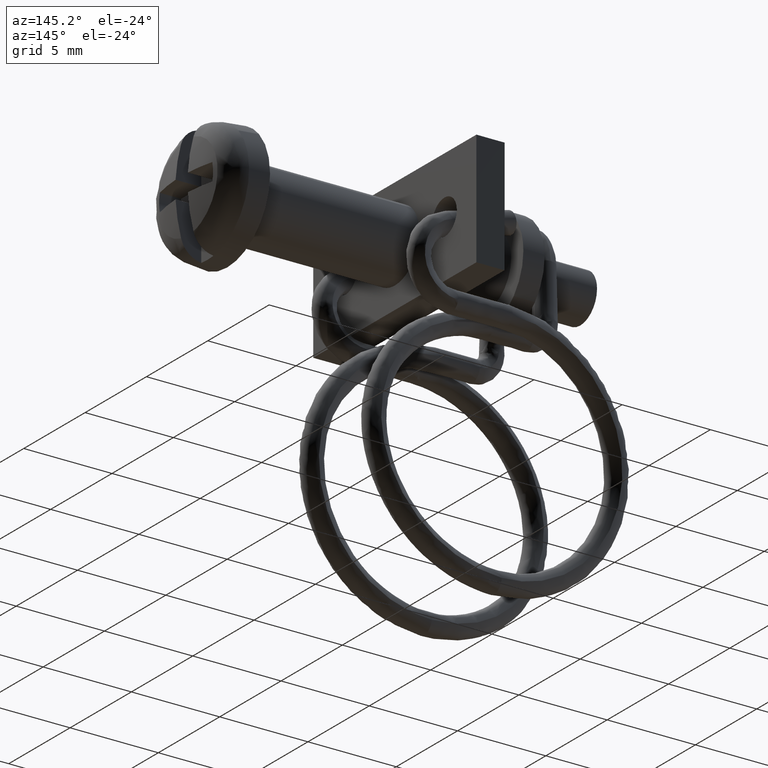
[diagram: clean part render]
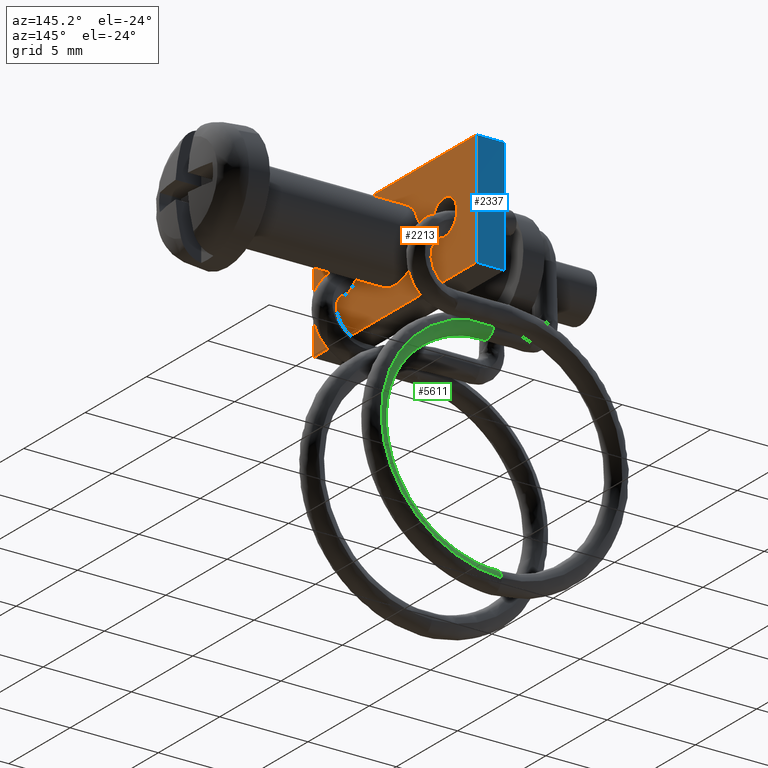
[diagram: same view with three faces highlighted in distinct colors, each labeled with its STEP entity id]
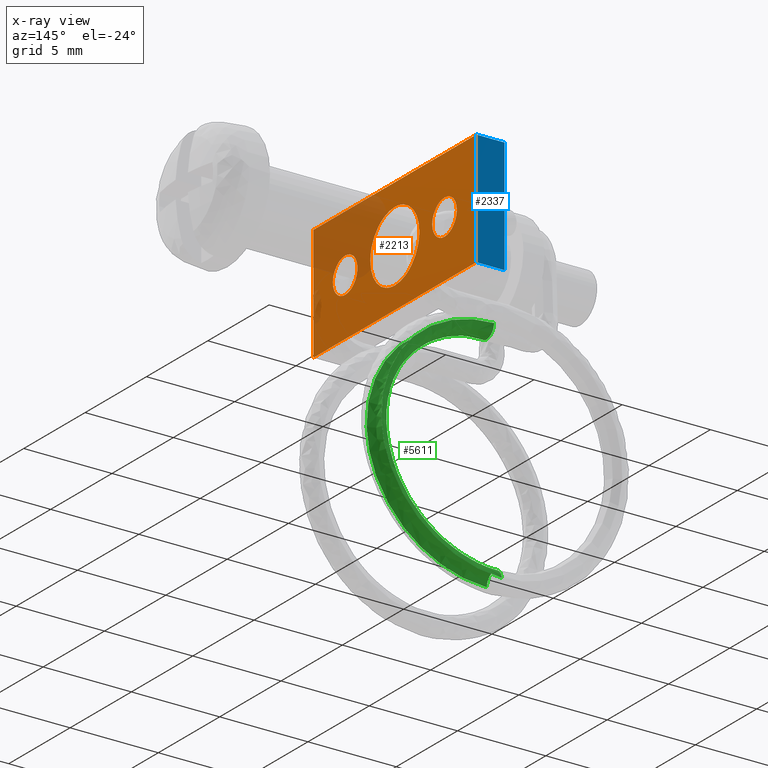
[diagram: x-ray of the same camera — body ghosted, the three highlighted faces saturated]
A machine part, auxiliary view with three faces highlighted in distinct colors.
The next image is the same camera in x-ray (body ghosted, the three faces saturated) — at least one of them is partly hidden behind the body in this view.
Their STEP definitions:

[orange] entity #2213 — the highlighted face is a freeform B-spline surface patch.
#1558=CARTESIAN_POINT('',(-9.500000000001013,-1.376709074266977,1.450748699295708));
#1559=VERTEX_POINT('',#1558);
#1560=CARTESIAN_POINT('',(-9.500000000000000,-1.999999999999972,-0.000000336783941));
#1561=VERTEX_POINT('',#1560);
#1562=CARTESIAN_POINT('',(-9.500000000001013,-1.376709074266977,1.450748699295708));
#1563=CARTESIAN_POINT('',(-9.500000000000943,-1.499392462714734,1.334395431810573));
#1564=CARTESIAN_POINT('',(-9.500000000000748,-1.687975837321238,1.103312920688563));
#1565=CARTESIAN_POINT('',(-9.500000000000526,-1.877575154653843,0.723379978676688));
#1566=CARTESIAN_POINT('',(-9.500000000000240,-1.978176975130994,0.363516855559823));
#1567=CARTESIAN_POINT('',(-9.500000000000075,-2.000010629226742,0.118355257256438));
#1568=CARTESIAN_POINT('',(-9.500000000000000,-1.999999999999972,-0.000000336783941));
#1569=B_SPLINE_CURVE_WITH_KNOTS('',3,(#1562,#1563,#1564,#1565,#1566,#1567,#1568),.UNSPECIFIED.,.F.,.U.,(4,1,1,1,4),(9.544013E-009,0.507239891594567,0.887665216070837,1.268100458223756,1.623167408407754),.UNSPECIFIED.);
#1570=EDGE_CURVE('',#1559,#1561,#1569,.T.);
#1572=CARTESIAN_POINT('',(-9.500000000000000,0.0,-2.000000000000199));
#1573=VERTEX_POINT('',#1572);
#1574=CARTESIAN_POINT('',(-9.500000000000000,-1.999999999999972,-0.000000336783941));
#1575=CARTESIAN_POINT('',(-9.500000000000002,-2.000122377351887,-0.212727367355783));
#1576=CARTESIAN_POINT('',(-9.499999999999996,-1.940686505506102,-0.580803602736940));
#1577=CARTESIAN_POINT('',(-9.500000000000020,-1.728635326195522,-1.036331010046611));
#1578=CARTESIAN_POINT('',(-9.499999999999966,-1.499633899786106,-1.337260354587177));
#1579=CARTESIAN_POINT('',(-9.500000000000023,-1.248754649479233,-1.573201526338301));
#1580=CARTESIAN_POINT('',(-9.499999999999998,-0.983436195732444,-1.752850986347630));
#1581=CARTESIAN_POINT('',(-9.499999999999965,-0.654195604512761,-1.901215530452847));
#1582=CARTESIAN_POINT('',(-9.500000000000110,-0.327250715124761,-1.983116104057300));
#1583=CARTESIAN_POINT('',(-9.499999999999861,-0.098173220102669,-2.000001010079179));
#1584=CARTESIAN_POINT('',(-9.500000000000000,0.0,-2.000000000000199));
#1585=B_SPLINE_CURVE_WITH_KNOTS('',3,(#1574,#1575,#1576,#1577,#1578,#1579,#1580,#1581,#1582,#1583,#1584),.UNSPECIFIED.,.F.,.U.,(4,1,1,1,1,1,1,1,4),(0.000000032458224,0.638139644845912,1.104475304421766,1.497183811055401,1.767155784760902,2.135313981160367,2.454386273502320,2.847088447003053,3.141612175933704),.UNSPECIFIED.);
#1586=EDGE_CURVE('',#1561,#1573,#1585,.T.);
#1588=CARTESIAN_POINT('',(-9.500000000001013,1.376709074266970,-1.450748699296099));
#1589=VERTEX_POINT('',#1588);
#1590=CARTESIAN_POINT('',(-9.500000000000000,0.0,-2.000000000000199));
#1591=CARTESIAN_POINT('',(-9.500000000000078,0.102810418467720,-2.000004336512524));
#1592=CARTESIAN_POINT('',(-9.500000000000236,0.324250317078886,-1.982896339372798));
#1593=CARTESIAN_POINT('',(-9.500000000000471,0.640202976912796,-1.904506852817401));
#1594=CARTESIAN_POINT('',(-9.500000000000744,1.011337098057659,-1.743533821503788));
#1595=CARTESIAN_POINT('',(-9.500000000000922,1.244807458875841,-1.576015773665277));
#1596=CARTESIAN_POINT('',(-9.500000000001013,1.376709074266970,-1.450748699296099));
#1597=B_SPLINE_CURVE_WITH_KNOTS('',3,(#1590,#1591,#1592,#1593,#1594,#1595,#1596),.UNSPECIFIED.,.F.,.U.,(4,1,1,1,4),(7.946572E-009,0.308433144725803,0.664321835104169,0.972751184920335,1.518445293771588),.UNSPECIFIED.);
#1598=EDGE_CURVE('',#1573,#1589,#1597,.T.);
#1671=CARTESIAN_POINT('',(-9.500000000000000,0.0,1.999999999999801));
#1672=VERTEX_POINT('',#1671);
#1673=CARTESIAN_POINT('',(-9.500000000000000,0.0,1.999999999999801));
#1674=CARTESIAN_POINT('',(-9.500000000000091,-0.142355272534694,2.000023214312075));
#1675=CARTESIAN_POINT('',(-9.500000000000357,-0.427052810746385,1.969476055367797));
#1676=CARTESIAN_POINT('',(-9.500000000000551,-0.804515533887421,1.844282463796651));
#1677=CARTESIAN_POINT('',(-9.500000000000849,-1.123081650538012,1.666016682180617));
#1678=CARTESIAN_POINT('',(-9.500000000000943,-1.296401161661675,1.526968708335822));
#1679=CARTESIAN_POINT('',(-9.500000000001013,-1.376709074266977,1.450748699295708));
#1680=B_SPLINE_CURVE_WITH_KNOTS('',3,(#1673,#1674,#1675,#1676,#1677,#1678,#1679),.UNSPECIFIED.,.F.,.U.,(4,1,1,1,4),(7.946628E-009,0.427062909442684,0.854123466611190,1.186285552355097,1.518445293771592),.UNSPECIFIED.);
#1681=EDGE_CURVE('',#1672,#1559,#1680,.T.);
#1722=CARTESIAN_POINT('',(-9.500000000000000,1.999999999999972,0.000000336783581));
#1723=VERTEX_POINT('',#1722);
#1724=CARTESIAN_POINT('',(-9.500000000001013,1.376709074266970,-1.450748699296099));
#1725=CARTESIAN_POINT('',(-9.500000000000966,1.468695640481478,-1.363464453707096));
#1726=CARTESIAN_POINT('',(-9.500000000000792,1.663918579988548,-1.139326478165478));
#1727=CARTESIAN_POINT('',(-9.500000000000515,1.866164134935382,-0.764285151770979));
#1728=CARTESIAN_POINT('',(-9.500000000000263,1.978176604691164,-0.363516972667552));
#1729=CARTESIAN_POINT('',(-9.500000000000098,2.000009798948269,-0.118354745070577));
#1730=CARTESIAN_POINT('',(-9.500000000000000,1.999999999999972,0.000000336783581));
#1731=B_SPLINE_CURVE_WITH_KNOTS('',3,(#1724,#1725,#1726,#1727,#1728,#1729,#1730),.UNSPECIFIED.,.F.,.U.,(4,1,1,1,4),(9.544113E-009,0.380429598113468,0.887665216070912,1.268100458223804,1.623167408407786),.UNSPECIFIED.);
#1732=EDGE_CURVE('',#1589,#1723,#1731,.T.);
#1734=CARTESIAN_POINT('',(-9.500000000000000,1.999999999999972,0.000000336783581));
#1735=CARTESIAN_POINT('',(-9.500000000000030,2.000128449687550,0.212731165795333));
#1736=CARTESIAN_POINT('',(-9.499999999999984,1.945953170987649,0.548075516522428));
#1737=CARTESIAN_POINT('',(-9.500000000000021,1.768625009763623,0.954769478948960));
#1738=CARTESIAN_POINT('',(-9.499999999999952,1.601459871539513,1.208288920122351));
#1739=CARTESIAN_POINT('',(-9.500000000000103,1.402036870293325,1.436630567958423));
#1740=CARTESIAN_POINT('',(-9.499999999999920,1.139385140425256,1.660428175987586));
#1741=CARTESIAN_POINT('',(-9.500000000000098,0.793252271514915,1.850942227589670));
#1742=CARTESIAN_POINT('',(-9.499999999999812,0.400869323993469,1.972576989311722));
#1743=CARTESIAN_POINT('',(-9.500000000000346,0.139080768957842,2.000022100786034));
#1744=CARTESIAN_POINT('',(-9.500000000000000,0.0,1.999999999999801));
#1745=B_SPLINE_CURVE_WITH_KNOTS('',3,(#1734,#1735,#1736,#1737,#1738,#1739,#1740,#1741,#1742,#1743,#1744),.UNSPECIFIED.,.F.,.U.,(4,1,1,1,1,1,1,1,4),(0.000000032457315,0.638139644845197,1.006298269538049,1.325377052543902,1.546271745031272,1.914412447194290,2.356209139533834,2.724373199422151,3.141612175933691),.UNSPECIFIED.);
#1746=EDGE_CURVE('',#1723,#1672,#1745,.T.);
#1769=CARTESIAN_POINT('',(-9.500000000001508,-4.738354466648021,0.725374309799078));
#1770=VERTEX_POINT('',#1769);
#1771=CARTESIAN_POINT('',(-9.500000000000000,-5.049999999999886,-0.000000478513849));
#1772=VERTEX_POINT('',#1771);
#1773=CARTESIAN_POINT('',(-9.500000000001508,-4.738354466648021,0.725374309799078));
#1774=CARTESIAN_POINT('',(-9.500000000001341,-4.818120126679785,0.649763923961580));
#1775=CARTESIAN_POINT('',(-9.500000000001039,-4.939392092991055,0.488992393419838));
#1776=CARTESIAN_POINT('',(-9.500000000000478,-5.032628636369743,0.232484052929179));
#1777=CARTESIAN_POINT('',(-9.500000000000149,-5.050008035355983,0.071857289531831));
#1778=CARTESIAN_POINT('',(-9.500000000000000,-5.049999999999886,-0.000000478513849));
#1779=B_SPLINE_CURVE_WITH_KNOTS('',3,(#1773,#1774,#1775,#1776,#1777,#1778),.UNSPECIFIED.,.F.,.U.,(4,1,1,4),(0.000000011929179,0.329708789289503,0.596006923234514,0.811584006613166),.UNSPECIFIED.);
#1780=EDGE_CURVE('',#1770,#1772,#1779,.T.);
#1782=CARTESIAN_POINT('',(-9.500000000000000,-4.050000000000000,-1.000000000000199));
#1783=VERTEX_POINT('',#1782);
#1784=CARTESIAN_POINT('',(-9.500000000000000,-5.049999999999886,-0.000000478513849));
#1785=CARTESIAN_POINT('',(-9.500000000000005,-5.050061327154706,-0.110456228694432));
#1786=CARTESIAN_POINT('',(-9.499999999999977,-5.021929848396090,-0.278124976981196));
#1787=CARTESIAN_POINT('',(-9.500000000000030,-4.928721465940886,-0.488317728210952));
#1788=CARTESIAN_POINT('',(-9.499999999999950,-4.834295606746552,-0.627780668936038));
#1789=CARTESIAN_POINT('',(-9.500000000000094,-4.704199801523146,-0.764438435748173));
#1790=CARTESIAN_POINT('',(-9.499999999999867,-4.539927621402841,-0.881652305684376));
#1791=CARTESIAN_POINT('',(-9.500000000000142,-4.311784375826829,-0.976153787893056));
#1792=CARTESIAN_POINT('',(-9.499999999999870,-4.144086210740238,-1.000032714566677));
#1793=CARTESIAN_POINT('',(-9.500000000000000,-4.050000000000000,-1.000000000000199));
#1794=B_SPLINE_CURVE_WITH_KNOTS('',3,(#1784,#1785,#1786,#1787,#1788,#1789,#1790,#1791,#1792,#1793),.UNSPECIFIED.,.F.,.U.,(4,1,1,1,1,1,1,4),(0.000000042544070,0.331341434894772,0.503150183640747,0.687234072183017,0.834486165751084,1.067655772283313,1.288553118971646,1.570805913178871),.UNSPECIFIED.);
#1795=EDGE_CURVE('',#1772,#1783,#1794,.T.);
#1797=CARTESIAN_POINT('',(-9.500000000001506,-3.361645533351978,-0.725374309799476));
#1798=VERTEX_POINT('',#1797);
#1799=CARTESIAN_POINT('',(-9.500000000000000,-4.050000000000000,-1.000000000000199));
#1800=CARTESIAN_POINT('',(-9.500000000000165,-3.978822218524906,-1.000011544262522));
#1801=CARTESIAN_POINT('',(-9.500000000000439,-3.844384991297198,-0.985581393913232));
#1802=CARTESIAN_POINT('',(-9.500000000000989,-3.602151244240251,-0.908434330735611));
#1803=CARTESIAN_POINT('',(-9.500000000001318,-3.447638213717948,-0.807116919777592));
#1804=CARTESIAN_POINT('',(-9.500000000001506,-3.361645533351978,-0.725374309799476));
#1805=B_SPLINE_CURVE_WITH_KNOTS('',3,(#1799,#1800,#1801,#1802,#1803,#1804),.UNSPECIFIED.,.F.,.U.,(4,1,1,4),(5.035059E-009,0.213535123130843,0.403343983892065,0.759235945269405),.UNSPECIFIED.);
#1806=EDGE_CURVE('',#1783,#1798,#1805,.T.);
#1877=CARTESIAN_POINT('',(-9.500000000000000,-4.050000000000000,0.999999999999801));
#1878=VERTEX_POINT('',#1877);
#1879=CARTESIAN_POINT('',(-9.500000000000000,-4.050000000000000,0.999999999999801));
#1880=CARTESIAN_POINT('',(-9.500000000000240,-4.152816025496784,1.000050258330452));
#1881=CARTESIAN_POINT('',(-9.500000000000616,-4.334683112034695,0.971695640381980));
#1882=CARTESIAN_POINT('',(-9.500000000001135,-4.566645822448246,0.866122163732073));
#1883=CARTESIAN_POINT('',(-9.500000000001400,-4.686730611351595,0.774375659591890));
#1884=CARTESIAN_POINT('',(-9.500000000001508,-4.738354466648021,0.725374309799078));
#1885=B_SPLINE_CURVE_WITH_KNOTS('',3,(#1879,#1880,#1881,#1882,#1883,#1884),.UNSPECIFIED.,.F.,.U.,(4,1,1,4),(5.035031E-009,0.308439757639053,0.545700827175480,0.759235945269404),.UNSPECIFIED.);
#1886=EDGE_CURVE('',#1878,#1770,#1885,.T.);
#1925=CARTESIAN_POINT('',(-9.500000000000000,-3.050000000000114,0.000000478513449));
#1926=VERTEX_POINT('',#1925);
#1927=CARTESIAN_POINT('',(-9.500000000001506,-3.361645533351978,-0.725374309799476));
#1928=CARTESIAN_POINT('',(-9.500000000001423,-3.315652560954686,-0.681732125997721));
#1929=CARTESIAN_POINT('',(-9.500000000001167,-3.215252787002979,-0.566461172379601));
#1930=CARTESIAN_POINT('',(-9.500000000000672,-3.087211059779770,-0.325430191940448));
#1931=CARTESIAN_POINT('',(-9.500000000000272,-3.049911479844544,-0.118364963243635));
#1932=CARTESIAN_POINT('',(-9.500000000000000,-3.050000000000114,0.000000478513449));
#1933=B_SPLINE_CURVE_WITH_KNOTS('',3,(#1927,#1928,#1929,#1930,#1931,#1932),.UNSPECIFIED.,.F.,.U.,(4,1,1,4),(0.000000011929370,0.190214925892573,0.456513576323227,0.811584006613162),.UNSPECIFIED.);
#1934=EDGE_CURVE('',#1798,#1926,#1933,.T.);
#1936=CARTESIAN_POINT('',(-9.500000000000000,-3.050000000000114,0.000000478513449));
#1937=CARTESIAN_POINT('',(-9.500000000000041,-3.049868756491202,0.126831895155536));
#1938=CARTESIAN_POINT('',(-9.499999999999895,-3.089457355841268,0.331261421043505));
#1939=CARTESIAN_POINT('',(-9.500000000000187,-3.217121613316501,0.566565506695508));
#1940=CARTESIAN_POINT('',(-9.499999999999735,-3.342339706750534,0.713525007456227));
#1941=CARTESIAN_POINT('',(-9.500000000000188,-3.484360352552299,0.831553271921452));
#1942=CARTESIAN_POINT('',(-9.499999999999920,-3.628000513461828,0.911764816917730));
#1943=CARTESIAN_POINT('',(-9.500000000000037,-3.820944870608208,0.980802860867531));
#1944=CARTESIAN_POINT('',(-9.499999999999989,-3.955910735867247,1.000036219263532));
#1945=CARTESIAN_POINT('',(-9.500000000000000,-4.050000000000000,0.999999999999801));
#1946=B_SPLINE_CURVE_WITH_KNOTS('',3,(#1936,#1937,#1938,#1939,#1940,#1941,#1942,#1943,#1944,#1945),.UNSPECIFIED.,.F.,.U.,(4,1,1,1,1,1,1,4),(0.000000042542486,0.380429555759637,0.613602699324276,0.797661904256641,0.957203256085496,1.165832491102426,1.288553118971473,1.570805913178876),.UNSPECIFIED.);
#1947=EDGE_CURVE('',#1926,#1878,#1946,.T.);
#1970=CARTESIAN_POINT('',(-9.500000000001506,3.361645533352073,0.725374309799078));
#1971=VERTEX_POINT('',#1970);
#1972=CARTESIAN_POINT('',(-9.500000000000000,3.050000000000209,-0.000000478513848));
#1973=VERTEX_POINT('',#1972);
#1974=CARTESIAN_POINT('',(-9.500000000001506,3.361645533352073,0.725374309799078));
#1975=CARTESIAN_POINT('',(-9.500000000001299,3.266469165630998,0.635265490540559));
#1976=CARTESIAN_POINT('',(-9.500000000001011,3.149835676041510,0.469730618001709));
#1977=CARTESIAN_POINT('',(-9.500000000000394,3.065104597060707,0.211339540859443));
#1978=CARTESIAN_POINT('',(-9.500000000000165,3.049987340582462,0.071859124306956));
#1979=CARTESIAN_POINT('',(-9.500000000000000,3.050000000000209,-0.000000478513848));
#1980=B_SPLINE_CURVE_WITH_KNOTS('',3,(#1974,#1975,#1976,#1977,#1978,#1979),.UNSPECIFIED.,.F.,.U.,(4,1,1,4),(0.000000011929297,0.393117717863804,0.596006923234517,0.811584006613163),.UNSPECIFIED.);
#1981=EDGE_CURVE('',#1971,#1973,#1980,.T.);
#1983=CARTESIAN_POINT('',(-9.500000000000000,4.050000000000095,-1.000000000000199));
#1984=VERTEX_POINT('',#1983);
#1985=CARTESIAN_POINT('',(-9.500000000000000,3.050000000000209,-0.000000478513848));
#1986=CARTESIAN_POINT('',(-9.500000000000000,3.049920710428122,-0.118639610022930));
#1987=CARTESIAN_POINT('',(-9.500000000000027,3.083874038216325,-0.306748120605913));
#1988=CARTESIAN_POINT('',(-9.499999999999982,3.186222880122469,-0.513095933401916));
#1989=CARTESIAN_POINT('',(-9.500000000000055,3.289448849878903,-0.655922755722854));
#1990=CARTESIAN_POINT('',(-9.499999999999909,3.402797891202192,-0.769272268244151));
#1991=CARTESIAN_POINT('',(-9.500000000000057,3.554427269328829,-0.874668861230385));
#1992=CARTESIAN_POINT('',(-9.499999999999957,3.763692960982105,-0.970559897921615));
#1993=CARTESIAN_POINT('',(-9.500000000000021,3.939545047911705,-1.000061857774999));
#1994=CARTESIAN_POINT('',(-9.500000000000000,4.050000000000095,-1.000000000000199));
#1995=B_SPLINE_CURVE_WITH_KNOTS('',3,(#1985,#1986,#1987,#1988,#1989,#1990,#1991,#1992,#1993,#1994),.UNSPECIFIED.,.F.,.U.,(4,1,1,1,1,1,1,4),(0.000000042541614,0.355885555167989,0.564514070374818,0.687234072181813,0.883571883008778,1.043111291898295,1.239464520928133,1.570805913178879),.UNSPECIFIED.);
#1996=EDGE_CURVE('',#1973,#1984,#1995,.T.);
#1998=CARTESIAN_POINT('',(-9.500000000001506,4.738354466648117,-0.725374309799476));
#1999=VERTEX_POINT('',#1998);
#2000=CARTESIAN_POINT('',(-9.500000000000000,4.050000000000095,-1.000000000000199));
#2001=CARTESIAN_POINT('',(-9.500000000000288,4.168644812831690,-1.000099901077826));
#2002=CARTESIAN_POINT('',(-9.500000000000606,4.350467103745647,-0.967234194574602));
#2003=CARTESIAN_POINT('',(-9.500000000001212,4.579281152718973,-0.856451307495445));
#2004=CARTESIAN_POINT('',(-9.500000000001355,4.686731962721698,-0.774378588257535));
#2005=CARTESIAN_POINT('',(-9.500000000001506,4.738354466648117,-0.725374309799476));
#2006=B_SPLINE_CURVE_WITH_KNOTS('',3,(#2000,#2001,#2002,#2003,#2004,#2005),.UNSPECIFIED.,.F.,.U.,(4,1,1,4),(5.034943E-009,0.355891966427261,0.545700827175485,0.759235945269405),.UNSPECIFIED.);
#2007=EDGE_CURVE('',#1984,#1999,#2006,.T.);
#2079=CARTESIAN_POINT('',(-9.500000000000000,4.050000000000095,0.999999999999801));
#2080=VERTEX_POINT('',#2079);
#2081=CARTESIAN_POINT('',(-9.500000000000000,4.050000000000095,0.999999999999801));
#2082=CARTESIAN_POINT('',(-9.500000000000270,3.931353427898584,1.000101447502217));
#2083=CARTESIAN_POINT('',(-9.500000000000599,3.765348283288544,0.970088447128535));
#2084=CARTESIAN_POINT('',(-9.500000000001164,3.534419013063662,0.864979887907152));
#2085=CARTESIAN_POINT('',(-9.500000000001339,3.424733420936521,0.785278064443374));
#2086=CARTESIAN_POINT('',(-9.500000000001506,3.361645533352073,0.725374309799078));
#2087=B_SPLINE_CURVE_WITH_KNOTS('',3,(#2081,#2082,#2083,#2084,#2085,#2086),.UNSPECIFIED.,.F.,.U.,(4,1,1,4),(5.035111E-009,0.355891966427325,0.498248513362577,0.759235945269404),.UNSPECIFIED.);
#2088=EDGE_CURVE('',#2080,#1971,#2087,.T.);
#2127=CARTESIAN_POINT('',(-9.500000000000000,5.049999999999980,0.000000478513450));
#2128=VERTEX_POINT('',#2127);
#2129=CARTESIAN_POINT('',(-9.500000000001506,4.738354466648117,-0.725374309799476));
#2130=CARTESIAN_POINT('',(-9.500000000001339,4.830442610617331,-0.638161897296462));
#2131=CARTESIAN_POINT('',(-9.500000000000952,4.948013850219654,-0.473588309038556));
#2132=CARTESIAN_POINT('',(-9.500000000000501,5.034439453676663,-0.215568131216203));
#2133=CARTESIAN_POINT('',(-9.500000000000128,5.050012305821571,-0.071859048551546));
#2134=CARTESIAN_POINT('',(-9.500000000000000,5.049999999999980,0.000000478513450));
#2135=B_SPLINE_CURVE_WITH_KNOTS('',3,(#2129,#2130,#2131,#2132,#2133,#2134),.UNSPECIFIED.,.F.,.U.,(4,1,1,4),(0.000000011929353,0.380431558030504,0.596006923234520,0.811584006613163),.UNSPECIFIED.);
#2136=EDGE_CURVE('',#1999,#2128,#2135,.T.);
#2138=CARTESIAN_POINT('',(-9.500000000000000,5.049999999999980,0.000000478513450));
#2139=CARTESIAN_POINT('',(-9.499999999999981,5.050013878510578,0.073630866543510));
#2140=CARTESIAN_POINT('',(-9.500000000000037,5.034115208347408,0.216796556624538));
#2141=CARTESIAN_POINT('',(-9.499999999999995,4.968417319443590,0.411667760047006));
#2142=CARTESIAN_POINT('',(-9.499999999999998,4.876303306738402,0.571950028019904));
#2143=CARTESIAN_POINT('',(-9.500000000000011,4.753040751026234,0.720293949155813));
#2144=CARTESIAN_POINT('',(-9.499999999999961,4.596264924472515,0.847355795104612));
#2145=CARTESIAN_POINT('',(-9.500000000000050,4.356737872230558,0.966097792062572));
#2146=CARTESIAN_POINT('',(-9.499999999999963,4.168644514494556,1.000100901008067));
#2147=CARTESIAN_POINT('',(-9.500000000000000,4.050000000000095,0.999999999999801));
#2148=B_SPLINE_CURVE_WITH_KNOTS('',3,(#2138,#2139,#2140,#2141,#2142,#2143,#2144,#2145,#2146,#2147),.UNSPECIFIED.,.F.,.U.,(4,1,1,1,1,1,1,4),(0.000000042542586,0.220888950011523,0.429517465279384,0.613602699324263,0.773144051440316,1.006291885125608,1.214920400626957,1.570805913178879),.UNSPECIFIED.);
#2149=EDGE_CURVE('',#2128,#2080,#2148,.T.);
#2154=CARTESIAN_POINT('',(-9.500000000000000,-7.314334974222019,3.574674987401539));
#2155=CARTESIAN_POINT('',(-9.500000000000000,7.314335330955819,3.574674987401539));
#2156=CARTESIAN_POINT('',(-9.500000000000000,-7.314334974222019,-3.574675161745525));
#2157=CARTESIAN_POINT('',(-9.500000000000000,7.314335330955819,-3.574675161745525));
#2158=B_SPLINE_SURFACE_WITH_KNOTS('',1,1,((#2154,#2156),(#2155,#2157)),.UNSPECIFIED.,.F.,.F.,.U.,(2,2),(2,2),(0.0,14.628670305177840),(0.0,7.149350149147064),.UNSPECIFIED.);
#2159=CARTESIAN_POINT('',(-9.500000000000000,6.650000000000000,-3.250000000000200));
#2160=VERTEX_POINT('',#2159);
#2161=CARTESIAN_POINT('',(-9.500000000000000,6.650000000000000,3.249999999999800));
#2162=VERTEX_POINT('',#2161);
#2163=CARTESIAN_POINT('',(-9.500000000000000,6.650000000000000,-3.250000000000200));
#2164=CARTESIAN_POINT('',(-9.500000000000000,6.650000000000000,3.249999999999800));
#2165=QUASI_UNIFORM_CURVE('',1,(#2163,#2164),.UNSPECIFIED.,.F.,.U.);
#2166=EDGE_CURVE('',#2160,#2162,#2165,.T.);
#2167=ORIENTED_EDGE('',*,*,#2166,.T.);
#2168=CARTESIAN_POINT('',(-9.500000000000000,-6.650000000000000,3.249999999999800));
#2169=VERTEX_POINT('',#2168);
#2170=CARTESIAN_POINT('',(-9.500000000000000,6.650000000000000,3.249999999999800));
#2171=CARTESIAN_POINT('',(-9.500000000000000,-6.650000000000000,3.249999999999800));
#2172=QUASI_UNIFORM_CURVE('',1,(#2170,#2171),.UNSPECIFIED.,.F.,.U.);
#2173=EDGE_CURVE('',#2162,#2169,#2172,.T.);
#2174=ORIENTED_EDGE('',*,*,#2173,.T.);
#2175=CARTESIAN_POINT('',(-9.500000000000000,-6.650000000000000,-3.250000000000200));
#2176=VERTEX_POINT('',#2175);
#2177=CARTESIAN_POINT('',(-9.500000000000000,-6.650000000000000,3.249999999999800));
#2178=CARTESIAN_POINT('',(-9.500000000000000,-6.650000000000000,-3.250000000000200));
#2179=QUASI_UNIFORM_CURVE('',1,(#2177,#2178),.UNSPECIFIED.,.F.,.U.);
#2180=EDGE_CURVE('',#2169,#2176,#2179,.T.);
#2181=ORIENTED_EDGE('',*,*,#2180,.T.);
#2182=CARTESIAN_POINT('',(-9.500000000000000,-6.650000000000000,-3.250000000000200));
#2183=CARTESIAN_POINT('',(-9.500000000000000,6.650000000000000,-3.250000000000200));
#2184=QUASI_UNIFORM_CURVE('',1,(#2182,#2183),.UNSPECIFIED.,.F.,.U.);
#2185=EDGE_CURVE('',#2176,#2160,#2184,.T.);
#2186=ORIENTED_EDGE('',*,*,#2185,.T.);
#2187=EDGE_LOOP('',(#2167,#2174,#2181,#2186));
#2188=FACE_OUTER_BOUND('',#2187,.T.);
#2189=ORIENTED_EDGE('',*,*,#1996,.F.);
#2190=ORIENTED_EDGE('',*,*,#1981,.F.);
#2191=ORIENTED_EDGE('',*,*,#2088,.F.);
#2192=ORIENTED_EDGE('',*,*,#2149,.F.);
#2193=ORIENTED_EDGE('',*,*,#2136,.F.);
#2194=ORIENTED_EDGE('',*,*,#2007,.F.);
#2195=EDGE_LOOP('',(#2189,#2190,#2191,#2192,#2193,#2194));
#2196=FACE_BOUND('',#2195,.T.);
#2197=ORIENTED_EDGE('',*,*,#1795,.F.);
#2198=ORIENTED_EDGE('',*,*,#1780,.F.);
#2199=ORIENTED_EDGE('',*,*,#1886,.F.);
#2200=ORIENTED_EDGE('',*,*,#1947,.F.);
#2201=ORIENTED_EDGE('',*,*,#1934,.F.);
#2202=ORIENTED_EDGE('',*,*,#1806,.F.);
#2203=EDGE_LOOP('',(#2197,#2198,#2199,#2200,#2201,#2202));
#2204=FACE_BOUND('',#2203,.T.);
#2205=ORIENTED_EDGE('',*,*,#1586,.F.);
#2206=ORIENTED_EDGE('',*,*,#1570,.F.);
#2207=ORIENTED_EDGE('',*,*,#1681,.F.);
#2208=ORIENTED_EDGE('',*,*,#1746,.F.);
#2209=ORIENTED_EDGE('',*,*,#1732,.F.);
#2210=ORIENTED_EDGE('',*,*,#1598,.F.);
#2211=EDGE_LOOP('',(#2205,#2206,#2207,#2208,#2209,#2210));
#2212=FACE_BOUND('',#2211,.T.);
#2213=ADVANCED_FACE('',(#2188,#2196,#2204,#2212),#2158,.F.);

[blue] entity #2337 — the highlighted face is a freeform B-spline surface patch.
#2159=CARTESIAN_POINT('',(-9.500000000000000,6.650000000000000,-3.250000000000200));
#2160=VERTEX_POINT('',#2159);
#2161=CARTESIAN_POINT('',(-9.500000000000000,6.650000000000000,3.249999999999800));
#2162=VERTEX_POINT('',#2161);
#2163=CARTESIAN_POINT('',(-9.500000000000000,6.650000000000000,-3.250000000000200));
#2164=CARTESIAN_POINT('',(-9.500000000000000,6.650000000000000,3.249999999999800));
#2165=QUASI_UNIFORM_CURVE('',1,(#2163,#2164),.UNSPECIFIED.,.F.,.U.);
#2166=EDGE_CURVE('',#2160,#2162,#2165,.T.);
#2219=CARTESIAN_POINT('',(-11.100000000000000,6.650000000000000,-3.250000000000200));
#2220=VERTEX_POINT('',#2219);
#2221=CARTESIAN_POINT('',(-11.100000000000000,6.650000000000000,3.249999999999800));
#2222=VERTEX_POINT('',#2221);
#2223=CARTESIAN_POINT('',(-11.100000000000000,6.650000000000000,-3.250000000000200));
#2224=CARTESIAN_POINT('',(-11.100000000000000,6.650000000000000,3.249999999999800));
#2225=QUASI_UNIFORM_CURVE('',1,(#2223,#2224),.UNSPECIFIED.,.F.,.U.);
#2226=EDGE_CURVE('',#2220,#2222,#2225,.T.);
#2286=CARTESIAN_POINT('',(-11.100000000000000,6.650000000000000,-3.250000000000200));
#2287=CARTESIAN_POINT('',(-9.500000000000000,6.650000000000000,-3.250000000000200));
#2288=QUASI_UNIFORM_CURVE('',1,(#2286,#2287),.UNSPECIFIED.,.F.,.U.);
#2289=EDGE_CURVE('',#2220,#2160,#2288,.T.);
#2316=CARTESIAN_POINT('',(-11.100000000000000,6.650000000000000,3.249999999999800));
#2317=CARTESIAN_POINT('',(-9.500000000000000,6.650000000000000,3.249999999999800));
#2318=QUASI_UNIFORM_CURVE('',1,(#2316,#2317),.UNSPECIFIED.,.F.,.U.);
#2319=EDGE_CURVE('',#2222,#2162,#2318,.T.);
#2326=CARTESIAN_POINT('',(-11.179919996898890,6.650000000000000,-3.574674987401939));
#2327=CARTESIAN_POINT('',(-11.179919996898890,6.650000000000000,3.574675161745125));
#2328=CARTESIAN_POINT('',(-9.420079960185767,6.650000000000000,-3.574674987401939));
#2329=CARTESIAN_POINT('',(-9.420079960185767,6.650000000000000,3.574675161745125));
#2330=B_SPLINE_SURFACE_WITH_KNOTS('',1,1,((#2326,#2328),(#2327,#2329)),.UNSPECIFIED.,.F.,.F.,.U.,(2,2),(2,2),(0.0,7.149350149147065),(0.041708334948495,0.958291687403247),.UNSPECIFIED.);
#2331=ORIENTED_EDGE('',*,*,#2166,.F.);
#2332=ORIENTED_EDGE('',*,*,#2289,.F.);
#2333=ORIENTED_EDGE('',*,*,#2226,.T.);
#2334=ORIENTED_EDGE('',*,*,#2319,.T.);
#2335=EDGE_LOOP('',(#2331,#2332,#2333,#2334));
#2336=FACE_OUTER_BOUND('',#2335,.T.);
#2337=ADVANCED_FACE('',(#2336),#2330,.T.);

[green] entity #5611 — the highlighted face is a freeform B-spline surface patch.
#5372=CARTESIAN_POINT('',(-13.150000000000000,2.831227853964407,-4.017934598870270));
#5373=VERTEX_POINT('',#5372);
#5381=CARTESIAN_POINT('',(-13.150000000000000,2.202389200221234,-4.645069067372981));
#5382=VERTEX_POINT('',#5381);
#5383=CARTESIAN_POINT('',(-13.150000000000000,2.202389200221234,-4.645069067372981));
#5384=CARTESIAN_POINT('',(-13.150000000000000,2.221474330848853,-4.646268491444610));
#5385=CARTESIAN_POINT('',(-13.150000000000000,2.240677908252435,-4.646443962787320));
#5386=CARTESIAN_POINT('',(-13.150000000000000,2.573756457505255,-4.630790123080701));
#5387=CARTESIAN_POINT('',(-13.150000000000000,2.845919794157308,-4.331798711975601));
#5388=CARTESIAN_POINT('',(-13.150000000000000,2.831227853964407,-4.017934598870270));
#5389=B_SPLINE_CURVE_WITH_KNOTS('',3,(#5383,#5384,#5385,#5386,#5387,#5388),.UNSPECIFIED.,.F.,.U.,(4,2,4),(0.734656928659896,0.750000000000000,1.0),.UNSPECIFIED.);
#5390=EDGE_CURVE('',#5382,#5373,#5389,.T.);
#5461=CARTESIAN_POINT('',(-13.150000000000000,1.632541350710907,-4.074065400734281));
#5462=VERTEX_POINT('',#5461);
#5463=CARTESIAN_POINT('',(-13.150000000000000,1.632541350710907,-4.074065400734281));
#5464=CARTESIAN_POINT('',(-13.150000000000000,1.646331002217988,-4.368676650248808));
#5465=CARTESIAN_POINT('',(-13.150000000000000,1.910507542169417,-4.626624690239388));
#5466=CARTESIAN_POINT('',(-13.150000000000000,2.202389200221234,-4.645069067372981));
#5467=B_SPLINE_CURVE_WITH_KNOTS('',3,(#5463,#5464,#5465,#5466),.UNSPECIFIED.,.F.,.U.,(4,4),(0.500000000000000,0.734656928659896),.UNSPECIFIED.);
#5468=EDGE_CURVE('',#5462,#5382,#5467,.T.);
#5483=CARTESIAN_POINT('',(-13.358405158386731,2.251538448981070,-17.292894324312432));
#5484=CARTESIAN_POINT('',(-13.348271025291661,2.225099026961980,-16.972319934256781));
#5485=CARTESIAN_POINT('',(-13.338895733722810,2.501842761093846,-16.661645652148451));
#5486=CARTESIAN_POINT('',(-13.338895733719500,3.142026434854931,-16.631667819765269));
#5487=CARTESIAN_POINT('',(-13.348271025291780,3.446591341368879,-16.915121206409779));
#5488=CARTESIAN_POINT('',(-13.358405158386731,3.450224952234571,-17.236763522448431));
#5489=CARTESIAN_POINT('',(-13.288936772257861,2.251538448981070,-17.292894324312432));
#5490=CARTESIAN_POINT('',(-13.282180683527811,2.225099026961980,-16.972319934256781));
#5491=CARTESIAN_POINT('',(-13.275930489148580,2.501842761093846,-16.661645652148451));
#5492=CARTESIAN_POINT('',(-13.275930489146370,3.142026434854931,-16.631667819765269));
#5493=CARTESIAN_POINT('',(-13.282180683527899,3.446591341368879,-16.915121206409779));
#5494=CARTESIAN_POINT('',(-13.288936772257861,3.450224952234571,-17.236763522448431));
#5495=CARTESIAN_POINT('',(-13.219468386128989,2.251538448981070,-17.292894324312432));
#5496=CARTESIAN_POINT('',(-13.216090341763961,2.225099026961980,-16.972319934256781));
#5497=CARTESIAN_POINT('',(-13.212965244574351,2.501842761093846,-16.661645652148451));
#5498=CARTESIAN_POINT('',(-13.212965244573249,3.142026434854931,-16.631667819765269));
#5499=CARTESIAN_POINT('',(-13.216090341764010,3.446591341368879,-16.915121206409779));
#5500=CARTESIAN_POINT('',(-13.219468386128989,3.450224952234571,-17.236763522448431));
#5501=CARTESIAN_POINT('',(-11.413290346778130,2.251538448981070,-17.292894324312432));
#5502=CARTESIAN_POINT('',(-11.497741455903750,2.225099026961980,-16.972319934256781));
#5503=CARTESIAN_POINT('',(-11.575868885644150,2.501842761093846,-16.661645652148451));
#5504=CARTESIAN_POINT('',(-11.575868885671740,3.142026434854931,-16.631667819765269));
#5505=CARTESIAN_POINT('',(-11.497741455902680,3.446591341368879,-16.915121206409779));
#5506=CARTESIAN_POINT('',(-11.413290346778130,3.450224952234571,-17.236763522448431));
#5507=CARTESIAN_POINT('',(-9.695845105518545,2.218153965588797,-16.579960813792411));
#5508=CARTESIAN_POINT('',(-9.863760987330203,2.193338458343313,-16.294065506467931));
#5509=CARTESIAN_POINT('',(-10.019103367014820,2.471584508888822,-16.015473545451869));
#5510=CARTESIAN_POINT('',(-10.019103367069681,3.111768182650820,-15.985495713080031));
#5511=CARTESIAN_POINT('',(-9.863760987328073,3.414830772750176,-16.236866778620492));
#5512=CARTESIAN_POINT('',(-9.695845105518544,3.416840468842496,-16.523830011928400));
#5513=CARTESIAN_POINT('',(-7.245208549062599,2.103435822891286,-14.130127838605750));
#5514=CARTESIAN_POINT('',(-7.532080426727423,2.084188832474840,-13.963149520605070));
#5515=CARTESIAN_POINT('',(-7.797471404996773,2.367586430605729,-13.794570072444090));
#5516=CARTESIAN_POINT('',(-7.797471405090507,3.007770104368782,-13.764592240111110));
#5517=CARTESIAN_POINT('',(-7.532080426723782,3.305681146881664,-13.905950792756110));
#5518=CARTESIAN_POINT('',(-7.245208549062599,3.302122326144589,-14.073997036741741));
#5519=CARTESIAN_POINT('',(-6.531516012796245,2.022806805804313,-12.408276175293681));
#5520=CARTESIAN_POINT('',(-6.852958513985684,2.007468456765813,-12.324767815145600));
#5521=CARTESIAN_POINT('',(-7.150331475547012,2.294482018118544,-12.233408113831450));
#5522=CARTESIAN_POINT('',(-7.150331475652044,2.934665691883255,-12.203430281525730));
#5523=CARTESIAN_POINT('',(-6.852958513981605,3.228960771172769,-12.267569087295589));
#5524=CARTESIAN_POINT('',(-6.531516012796245,3.221493309057902,-12.352145373430471));
#5525=CARTESIAN_POINT('',(-6.530785169695117,1.860522014913935,-8.942646216987829));
#5526=CARTESIAN_POINT('',(-6.852263088586343,1.853048217887712,-9.027087218656492));
#5527=CARTESIAN_POINT('',(-7.149668815767849,2.147337435429590,-9.091100870056451));
#5528=CARTESIAN_POINT('',(-7.149668815872893,2.787521109196872,-9.061123037805611));
#5529=CARTESIAN_POINT('',(-6.852263088582263,3.074540532294178,-8.969888490804337));
#5530=CARTESIAN_POINT('',(-6.530785169695116,3.059208518167349,-8.886515415123020));
#5531=CARTESIAN_POINT('',(-7.243786663299330,1.779865156784388,-7.220200001631994));
#5532=CARTESIAN_POINT('',(-7.530727498842384,1.776301345069535,-7.388139661168109));
#5533=CARTESIAN_POINT('',(-7.796182271439323,2.074207769133414,-7.529399610380812));
#5534=CARTESIAN_POINT('',(-7.796182271533081,2.714391442901968,-7.499421778158800));
#5535=CARTESIAN_POINT('',(-7.530727498838743,2.997793659476337,-7.330940933314832));
#5536=CARTESIAN_POINT('',(-7.243786663299330,2.978551660038073,-7.164069199767984));
#5537=CARTESIAN_POINT('',(-9.694306031043995,1.665079903998267,-4.768933874721351));
#5538=CARTESIAN_POINT('',(-9.862296682447061,1.667087860919300,-5.055859966683245));
#5539=CARTESIAN_POINT('',(-10.017708232994250,1.970148840880547,-5.307196671966697));
#5540=CARTESIAN_POINT('',(-10.017708233049150,2.610332514650926,-5.277218839780494));
#5541=CARTESIAN_POINT('',(-9.862296682444928,2.888580175325645,-4.998661238828580));
#5542=CARTESIAN_POINT('',(-9.694306031043995,2.863766407251579,-4.712803072857342));
#5543=CARTESIAN_POINT('',(-11.412350853184430,1.631659650137027,-4.055236477171391));
#5544=CARTESIAN_POINT('',(-11.496847663938761,1.635293261046736,-4.376878793212056));
#5545=CARTESIAN_POINT('',(-11.575017373179961,1.939858166404838,-4.660332179801446));
#5546=CARTESIAN_POINT('',(-11.575017373207571,2.580041840175750,-4.630354347628116));
#5547=CARTESIAN_POINT('',(-11.496847663937681,2.856785575453253,-4.319680065356894));
#5548=CARTESIAN_POINT('',(-11.412350853184430,2.830346153390527,-3.999105675307383));
#5549=CARTESIAN_POINT('',(-13.219505965872621,1.631659650137027,-4.055236477171389));
#5550=CARTESIAN_POINT('',(-13.216126093442449,1.635293261046736,-4.376878793212056));
#5551=CARTESIAN_POINT('',(-13.212999305072801,1.939858166404838,-4.660332179801446));
#5552=CARTESIAN_POINT('',(-13.212999305071699,2.580041840175750,-4.630354347628116));
#5553=CARTESIAN_POINT('',(-13.216126093442490,2.856785575453253,-4.319680065356890));
#5554=CARTESIAN_POINT('',(-13.219505965872621,2.830346153390527,-3.999105675307378));
#5555=CARTESIAN_POINT('',(-13.289011931745240,1.631659650137027,-4.055236477171389));
#5556=CARTESIAN_POINT('',(-13.282252186884900,1.635293261046736,-4.376878793212056));
#5557=CARTESIAN_POINT('',(-13.275998610145599,1.939858166404838,-4.660332179801446));
#5558=CARTESIAN_POINT('',(-13.275998610143390,2.580041840175750,-4.630354347628116));
#5559=CARTESIAN_POINT('',(-13.282252186884980,2.856785575453253,-4.319680065356890));
#5560=CARTESIAN_POINT('',(-13.289011931745240,2.830346153390527,-3.999105675307378));
#5561=CARTESIAN_POINT('',(-13.358517897617871,1.631659650137027,-4.055236477171389));
#5562=CARTESIAN_POINT('',(-13.348378280327349,1.635293261046736,-4.376878793212056));
#5563=CARTESIAN_POINT('',(-13.338997915218400,1.939858166404838,-4.660332179801446));
#5564=CARTESIAN_POINT('',(-13.338997915215090,2.580041840175750,-4.630354347628116));
#5565=CARTESIAN_POINT('',(-13.348378280327481,2.856785575453253,-4.319680065356889));
#5566=CARTESIAN_POINT('',(-13.358517897617871,2.830346153390527,-3.999105675307377));
#5567=B_SPLINE_SURFACE_WITH_KNOTS('',3,3,((#5483,#5489,#5495,#5501,#5507,#5513,#5519,#5525,#5531,#5537,#5543,#5549,#5555,#5561),(#5484,#5490,#5496,#5502,#5508,#5514,#5520,#5526,#5532,#5538,#5544,#5550,#5556,#5562),(#5485,#5491,#5497,#5503,#5509,#5515,#5521,#5527,#5533,#5539,#5545,#5551,#5557,#5563),(#5486,#5492,#5498,#5504,#5510,#5516,#5522,#5528,#5534,#5540,#5546,#5552,#5558,#5564),(#5487,#5493,#5499,#5505,#5511,#5517,#5523,#5529,#5535,#5541,#5547,#5553,#5559,#5565),(#5488,#5494,#5500,#5506,#5512,#5518,#5524,#5530,#5536,#5542,#5548,#5554,#5560,#5566)),.UNSPECIFIED.,.F.,.F.,.U.,(4,2,4),(4,2,2,2,2,2,4),(0.0,0.965467839917732,1.930935679835463),(0.0,0.208517897617841,5.421465338064609,10.634412778511299,15.847360218958000,21.060307659404760,21.268825557022630),.UNSPECIFIED.);
#5568=CARTESIAN_POINT('',(-13.150000000000089,2.250656748399047,-17.274065400749539));
#5569=VERTEX_POINT('',#5568);
#5570=CARTESIAN_POINT('',(-13.150000000000089,2.250656748399047,-17.274065400749539));
#5571=CARTESIAN_POINT('',(-11.418242330939940,2.250656748399047,-17.274065400749539));
#5572=CARTESIAN_POINT('',(-9.705691237746517,2.217367486968444,-16.563165377654489));
#5573=CARTESIAN_POINT('',(-7.262029938495831,2.102975867007638,-14.120305372435910));
#5574=CARTESIAN_POINT('',(-6.550364529900537,2.022576042059025,-12.403348161234121));
#5575=CARTESIAN_POINT('',(-6.549635763597434,1.860752407186466,-8.947566298333033));
#5576=CARTESIAN_POINT('',(-7.260612096235668,1.780324819999893,-7.230016217978570));
#5577=CARTESIAN_POINT('',(-9.704156547558197,1.665866280627619,-4.785727132991305));
#5578=CARTESIAN_POINT('',(-11.417305517165911,1.632541350710907,-4.074065400734283));
#5579=CARTESIAN_POINT('',(-13.150000000000000,1.632541350710907,-4.074065400734281));
#5580=B_SPLINE_CURVE_WITH_KNOTS('',3,(#5570,#5571,#5572,#5573,#5574,#5575,#5576,#5577,#5578,#5579),.UNSPECIFIED.,.F.,.U.,(4,2,2,2,4),(0.258484128268389,0.299099171835977,0.339714215403565,0.380329258971153,0.420944302538741),.UNSPECIFIED.);
#5581=EDGE_CURVE('',#5569,#5462,#5580,.T.);
#5582=ORIENTED_EDGE('',*,*,#5581,.T.);
#5583=ORIENTED_EDGE('',*,*,#5468,.T.);
#5584=ORIENTED_EDGE('',*,*,#5390,.T.);
#5585=CARTESIAN_POINT('',(-13.150000000000061,3.449343251644404,-17.217934598885542));
#5586=VERTEX_POINT('',#5585);
#5587=CARTESIAN_POINT('',(-13.150000000000061,3.449343251644404,-17.217934598885542));
#5588=CARTESIAN_POINT('',(-11.418242330939909,3.449343251644404,-17.217934598885542));
#5589=CARTESIAN_POINT('',(-9.705691237746487,3.416053990214426,-16.507034575790481));
#5590=CARTESIAN_POINT('',(-7.262029938495808,3.301662370254754,-14.064174570571909));
#5591=CARTESIAN_POINT('',(-6.550364529900517,3.221262545307481,-12.347217359370870));
#5592=CARTESIAN_POINT('',(-6.549635763597422,3.059438910436867,-8.891435496468271));
#5593=CARTESIAN_POINT('',(-7.260612096235661,2.979011323251631,-7.173885416114560));
#5594=CARTESIAN_POINT('',(-9.704156547558196,2.864552783880492,-4.729596331127295));
#5595=CARTESIAN_POINT('',(-11.417305517165911,2.831227853964407,-4.017934598870275));
#5596=CARTESIAN_POINT('',(-13.150000000000000,2.831227853964407,-4.017934598870270));
#5597=B_SPLINE_CURVE_WITH_KNOTS('',3,(#5587,#5588,#5589,#5590,#5591,#5592,#5593,#5594,#5595,#5596),.UNSPECIFIED.,.F.,.U.,(4,2,2,2,4),(0.258484128268389,0.299099171835977,0.339714215403565,0.380329258971153,0.420944302538741),.UNSPECIFIED.);
#5598=EDGE_CURVE('',#5586,#5373,#5597,.T.);
#5599=ORIENTED_EDGE('',*,*,#5598,.F.);
#5600=CARTESIAN_POINT('',(-13.150000000000089,2.250656748399047,-17.274065400749539));
#5601=CARTESIAN_POINT('',(-13.150000000000089,2.235961738834374,-16.960250008034659));
#5602=CARTESIAN_POINT('',(-13.150000000000080,2.508119206376980,-16.661351757755462));
#5603=CARTESIAN_POINT('',(-13.150000000000070,3.135749991802456,-16.631961738626110));
#5604=CARTESIAN_POINT('',(-13.150000000000061,3.434648242079732,-16.904119206170659));
#5605=CARTESIAN_POINT('',(-13.150000000000061,3.449343251644404,-17.217934598885542));
#5606=B_SPLINE_CURVE_WITH_KNOTS('',3,(#5600,#5601,#5602,#5603,#5604,#5605),.UNSPECIFIED.,.F.,.U.,(4,2,4),(0.500000000000000,0.750000000000000,1.0),.UNSPECIFIED.);
#5607=EDGE_CURVE('',#5569,#5586,#5606,.T.);
#5608=ORIENTED_EDGE('',*,*,#5607,.F.);
#5609=EDGE_LOOP('',(#5582,#5583,#5584,#5599,#5608));
#5610=FACE_OUTER_BOUND('',#5609,.T.);
#5611=ADVANCED_FACE('',(#5610),#5567,.F.);